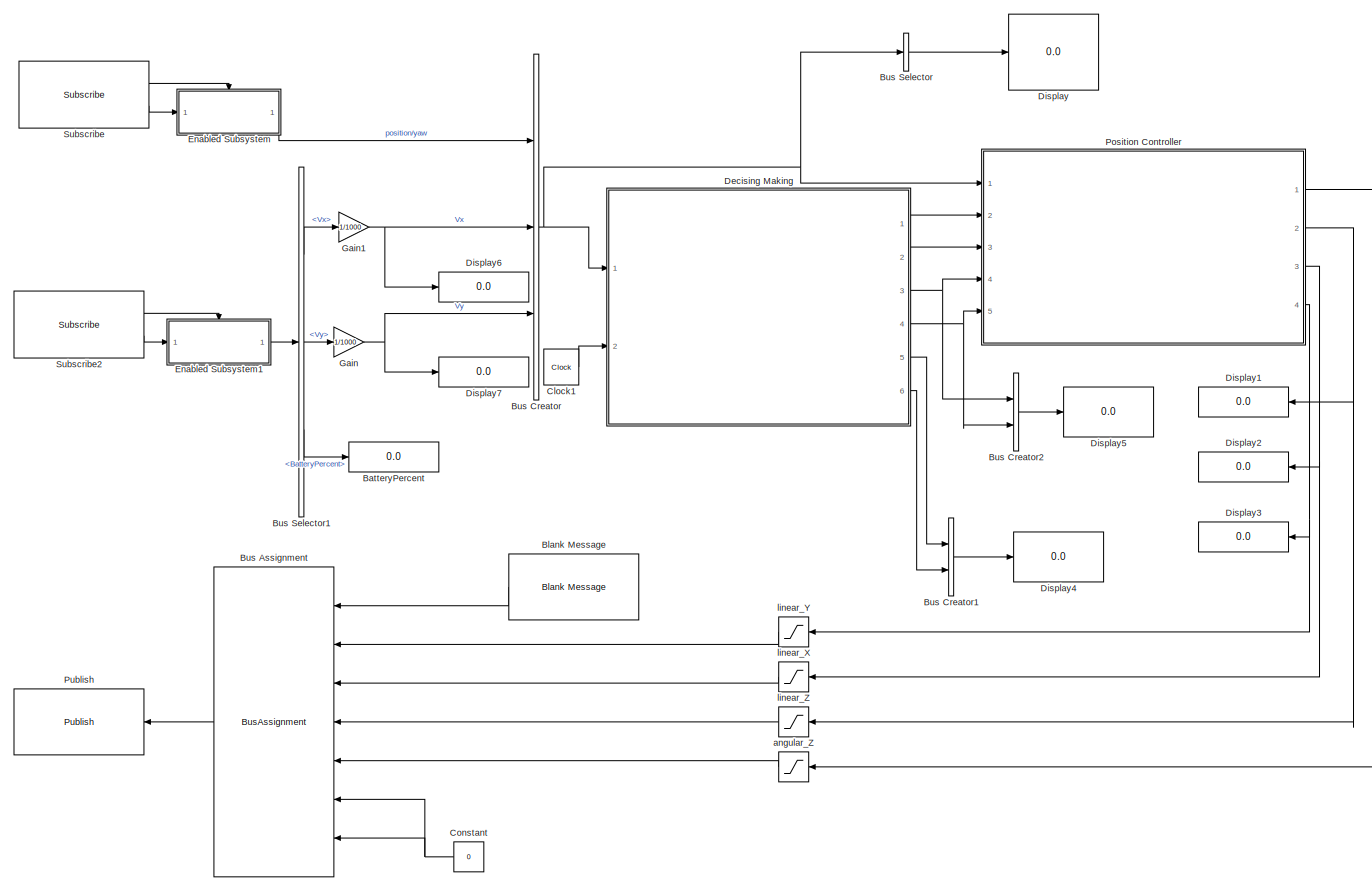
[diagram: root canvas - part 1/1, most of the canvas]
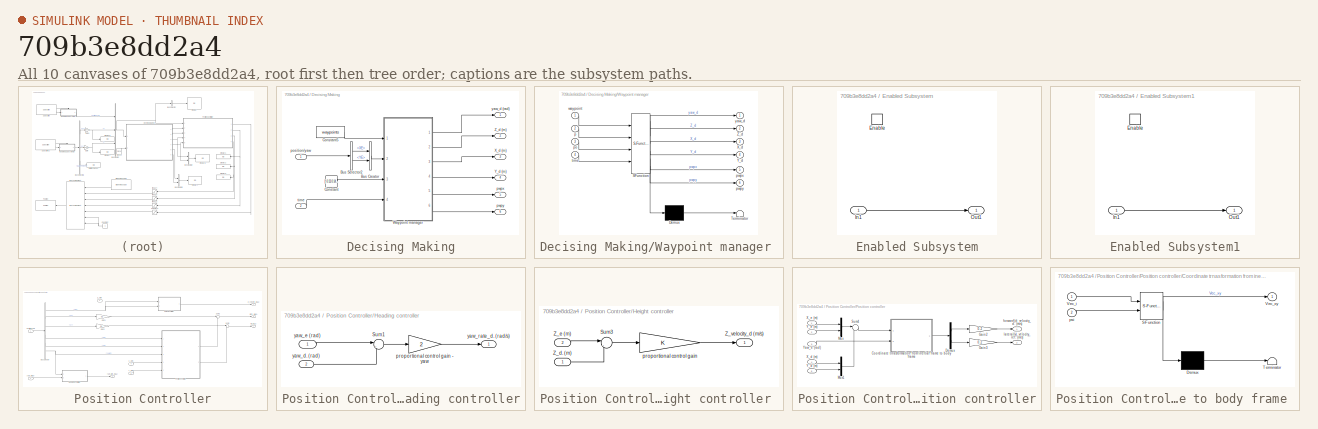
[diagram: thumbnail index - all 10 canvases of the model, root first then tree order]
MODEL slx_709b3e8dd2a4
KIND model
CONFIG AbsTol = auto
CONFIG FixedStep = auto
CONFIG MaxStep = auto
CONFIG MinStep = auto
CONFIG RelTol = 1e-3
CONFIG SampleTimeConstraint = Unconstrained
CONFIG Solver = VariableStepAuto
CONFIG SolverMode = Auto
CONFIG SolverName = VariableStepAuto
CONFIG StartTime = 0.0
CONFIG StopTime = inf
BLOCK [Display] BatteryPercent
  Decimation = 1
  Ports = [1]
BLOCK [Reference] Blank Message  REF=robotlib/Blank Message
  Ports = [0, 1]
  SourceBlock = robotlib/Blank Message
  SourceLibraryInfo = This block requires Robotics System Toolbox
  SourceType = ROS Blank Message
BLOCK [BusAssignment] Bus Assignment
  AssignedSignals = Linear.Y,Linear.X,Angular.Z,Linear.Z,Angular.X,Angular.Y
  Ports = [7, 1]
BLOCK [BusCreator] Bus Creator
  DisplayOption = bar
  InheritFromInputs = on
  Inputs = 3
  Ports = [3, 1]
BLOCK [BusCreator] Bus Creator1
  DisplayOption = bar
  InheritFromInputs = on
  Inputs = 2
  Ports = [2, 1]
BLOCK [BusCreator] Bus Creator2
  DisplayOption = bar
  InheritFromInputs = on
  Inputs = 2
  Ports = [2, 1]
BLOCK [BusSelector] Bus Selector
  OutputAsBus = on
  OutputSignals = position/yaw.XE,position/yaw.YE,position/yaw.YawE
  Ports = [1, 1]
BLOCK [BusSelector] Bus Selector1
  OutputSignals = Vx,Vy,BatteryPercent
  Ports = [1, 3]
BLOCK [Clock] Clock1
  DisplayTime = on
BLOCK [Constant] Constant
  Value = 0
BLOCK [SubSystem] Decising Making
  Ports = [2, 6]
  RequestExecContextInheritance = off
  Variant = off
BLOCK [BusCreator] Decising Making/Bus Creator
  DisplayOption = bar
  InheritFromInputs = on
  Inputs = 2
  Ports = [2, 1]
BLOCK [BusSelector] Decising Making/Bus Selector2
  OutputSignals = position/yaw.XE,position/yaw.YE
  Ports = [1, 2]
BLOCK [Constant] Decising Making/Constant
  Value = [-0.13,0.145,0.3]'
BLOCK [Constant] Decising Making/Constant5
  Value = waypoints
  VectorParams1D = off
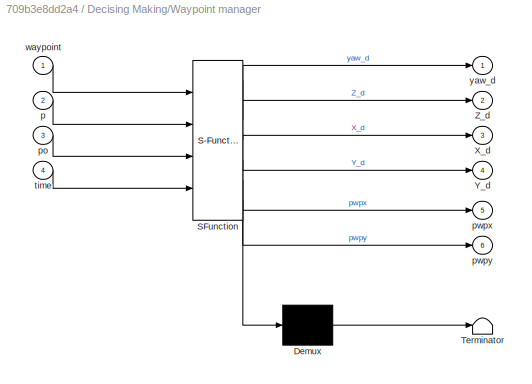
BLOCK [SubSystem] Decising Making/Waypoint manager 
  ErrorFcn = Stateflow.Translate.translate
  PermitHierarchicalResolution = ExplicitOnly
  Ports = [4, 6]
  RequestExecContextInheritance = off
  SFBlockType = MATLAB Function
  TreatAsAtomicUnit = on
  Variant = off
BLOCK [Demux] Decising Making/Waypoint manager / Demux 
  Outputs = 1
  Ports = [1, 1]
BLOCK [S-Function] Decising Making/Waypoint manager / SFunction 
  EnableBusSupport = on
  FunctionName = sf_sfun
  PortCounts = [4 7]
  Ports = [4, 7]
  SFunctionDeploymentMode = off
  Tag = Stateflow S-Function Avoiding_Obstacle 9
BLOCK [Terminator] Decising Making/Waypoint manager / Terminator 
BLOCK [Outport] Decising Making/Waypoint manager /X_d
  IconDisplay = Port number
  Port = 3
BLOCK [Outport] Decising Making/Waypoint manager /Y_d
  IconDisplay = Port number
  Port = 4
BLOCK [Outport] Decising Making/Waypoint manager /Z_d
  IconDisplay = Port number
  Port = 2
BLOCK [Inport] Decising Making/Waypoint manager /p
  IconDisplay = Port number
  Port = 2
BLOCK [Inport] Decising Making/Waypoint manager /po
  IconDisplay = Port number
  Port = 3
BLOCK [Outport] Decising Making/Waypoint manager /pwpx
  IconDisplay = Port number
  Port = 5
BLOCK [Outport] Decising Making/Waypoint manager /pwpy
  IconDisplay = Port number
  Port = 6
BLOCK [Inport] Decising Making/Waypoint manager /time
  IconDisplay = Port number
  Port = 4
BLOCK [Inport] Decising Making/Waypoint manager /waypoint
  IconDisplay = Port number
BLOCK [Outport] Decising Making/Waypoint manager /yaw_d
  IconDisplay = Port number
BLOCK [Outport] Decising Making/X_d (m)
  IconDisplay = Port number
  Port = 3
BLOCK [Outport] Decising Making/Y_d (m)
  IconDisplay = Port number
  Port = 4
BLOCK [Outport] Decising Making/Z_d (m)
  IconDisplay = Port number
  Port = 2
BLOCK [Inport] Decising Making/position//yaw
  IconDisplay = Port number
BLOCK [Outport] Decising Making/pwpx
  IconDisplay = Port number
  Port = 5
BLOCK [Outport] Decising Making/pwpy
  IconDisplay = Port number
  Port = 6
BLOCK [Inport] Decising Making/time
  IconDisplay = Port number
  Port = 2
BLOCK [Outport] Decising Making/yaw_d (rad)
  IconDisplay = Port number
BLOCK [Display] Display
  Decimation = 1
  Ports = [1]
BLOCK [Display] Display1
  Decimation = 1
  Ports = [1]
BLOCK [Display] Display2
  Decimation = 1
  Ports = [1]
BLOCK [Display] Display3
  Decimation = 1
  Ports = [1]
BLOCK [Display] Display4
  Decimation = 1
  Ports = [1]
BLOCK [Display] Display5
  Decimation = 1
  Ports = [1]
BLOCK [Display] Display6
  Decimation = 1
  Ports = [1]
BLOCK [Display] Display7
  Decimation = 1
  Ports = [1]
BLOCK [SubSystem] Enabled Subsystem
  Ports = [1, 1, 1]
  RequestExecContextInheritance = off
  TreatAsAtomicUnit = on
  Variant = off
BLOCK [EnablePort] Enabled Subsystem/Enable
  Ports = []
BLOCK [Inport] Enabled Subsystem/In1
  IconDisplay = Port number
BLOCK [Outport] Enabled Subsystem/Out1
  IconDisplay = Port number
BLOCK [SubSystem] Enabled Subsystem1
  Ports = [1, 1, 1]
  RequestExecContextInheritance = off
  TreatAsAtomicUnit = on
  Variant = off
BLOCK [EnablePort] Enabled Subsystem1/Enable
  Ports = []
BLOCK [Inport] Enabled Subsystem1/In1
  IconDisplay = Port number
BLOCK [Outport] Enabled Subsystem1/Out1
  IconDisplay = Port number
BLOCK [Gain] Gain
  Gain = 1/1000
  OutDataTypeStr = Inherit: Inherit via internal rule
  ParamDataTypeStr = Inherit: Inherit via internal rule
  SaturateOnIntegerOverflow = off
BLOCK [Gain] Gain1
  Gain = 1/1000
  OutDataTypeStr = Inherit: Inherit via internal rule
  ParamDataTypeStr = Inherit: Inherit via internal rule
  SaturateOnIntegerOverflow = off
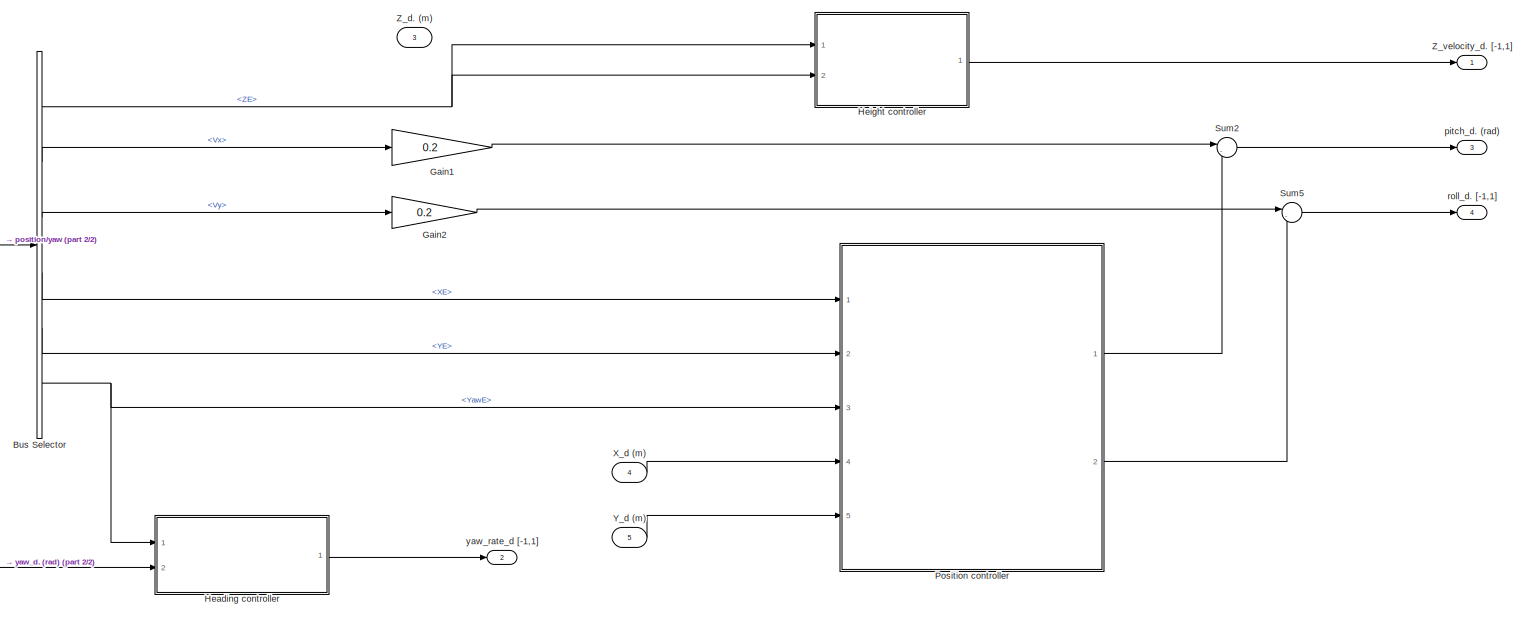
[diagram: Position Controller - part 1/2, most of the canvas]
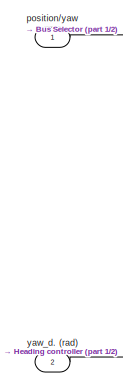
[diagram: Position Controller - part 2/2, middle left region]
BLOCK [SubSystem] Position Controller
  AncestorBlock = ARBlocks/Baseline Controller
  Ports = [5, 4]
  RequestExecContextInheritance = off
  Variant = off
BLOCK [Inport] Position Controller/ position//yaw 
  IconDisplay = Port number
BLOCK [BusSelector] Position Controller/Bus Selector
  OutputSignals = position/yaw.ZE,Vx,Vy,position/yaw.XE,position/yaw.YE,position/yaw.YawE
  Ports = [1, 6]
BLOCK [Gain] Position Controller/Gain1
  Gain = 0.2
  OutDataTypeStr = Inherit: Inherit via internal rule
  ParamDataTypeStr = Inherit: Inherit via internal rule
  SaturateOnIntegerOverflow = off
BLOCK [Gain] Position Controller/Gain2
  Gain = 0.2
  OutDataTypeStr = Inherit: Inherit via internal rule
  ParamDataTypeStr = Inherit: Inherit via internal rule
  SaturateOnIntegerOverflow = off
BLOCK [SubSystem] Position Controller/Heading controller
  Ports = [2, 1]
  RequestExecContextInheritance = off
  Variant = off
BLOCK [Sum] Position Controller/Heading controller/Sum1
  IconShape = round
  InputSameDT = off
  Inputs = |-+
  OutDataTypeStr = Inherit: Inherit via internal rule
  Ports = [2, 1]
  SaturateOnIntegerOverflow = off
BLOCK [Gain] Position Controller/Heading controller/proportional control gain - yaw
  Gain = 2
  OutDataTypeStr = Inherit: Inherit via internal rule
  ParamDataTypeStr = Inherit: Inherit via internal rule
  SaturateOnIntegerOverflow = off
BLOCK [Inport] Position Controller/Heading controller/yaw_d. (rad)
  IconDisplay = Port number
  Port = 2
BLOCK [Inport] Position Controller/Heading controller/yaw_e (rad)
  IconDisplay = Port number
BLOCK [Outport] Position Controller/Heading controller/yaw_rate_d. (rad//s)
  IconDisplay = Port number
BLOCK [SubSystem] Position Controller/Height controller 
  Ports = [2, 1]
  RequestExecContextInheritance = off
  Variant = off
BLOCK [Sum] Position Controller/Height controller /Sum3
  IconShape = round
  InputSameDT = off
  Inputs = |-+
  OutDataTypeStr = Inherit: Inherit via internal rule
  Ports = [2, 1]
  SaturateOnIntegerOverflow = off
BLOCK [Inport] Position Controller/Height controller /Z_d. (m)
  IconDisplay = Port number
BLOCK [Inport] Position Controller/Height controller /Z_e (m)
  IconDisplay = Port number
  Port = 2
BLOCK [Outport] Position Controller/Height controller /Z_velocity_d (m//s)
  IconDisplay = Port number
BLOCK [Gain] Position Controller/Height controller /proportional control gain
  OutDataTypeStr = Inherit: Inherit via internal rule
  ParamDataTypeStr = Inherit: Inherit via internal rule
  SaturateOnIntegerOverflow = off
BLOCK [SubSystem] Position Controller/Position controller
  Ports = [5, 2]
  RequestExecContextInheritance = off
  Variant = off
BLOCK [SubSystem] Position Controller/Position controller/Coordinate trnasformation from inertial frame to body frame 
  ErrorFcn = Stateflow.Translate.translate
  PermitHierarchicalResolution = ExplicitOnly
  Ports = [2, 1]
  RequestExecContextInheritance = off
  SFBlockType = MATLAB Function
  TreatAsAtomicUnit = on
  Variant = off
BLOCK [Demux] Position Controller/Position controller/Coordinate trnasformation from inertial frame to body frame / Demux 
  Outputs = 1
  Ports = [1, 1]
BLOCK [S-Function] Position Controller/Position controller/Coordinate trnasformation from inertial frame to body frame / SFunction 
  EnableBusSupport = on
  FunctionName = sf_sfun
  PortCounts = [2 2]
  Ports = [2, 2]
  SFunctionDeploymentMode = off
  Tag = Stateflow S-Function Avoiding_Obstacle 7
BLOCK [Terminator] Position Controller/Position controller/Coordinate trnasformation from inertial frame to body frame / Terminator 
BLOCK [Inport] Position Controller/Position controller/Coordinate trnasformation from inertial frame to body frame /Vec_i
  IconDisplay = Port number
BLOCK [Outport] Position Controller/Position controller/Coordinate trnasformation from inertial frame to body frame /Vec_xy
  IconDisplay = Port number
BLOCK [Inport] Position Controller/Position controller/Coordinate trnasformation from inertial frame to body frame /psi
  IconDisplay = Port number
  Port = 2
BLOCK [Demux] Position Controller/Position controller/Demux
  DisplayOption = bar
  Outputs = 2
  Ports = [1, 2]
BLOCK [Gain] Position Controller/Position controller/Gain2
  Gain = 0.2
  OutDataTypeStr = Inherit: Inherit via internal rule
  ParamDataTypeStr = Inherit: Inherit via internal rule
  SaturateOnIntegerOverflow = off
BLOCK [Gain] Position Controller/Position controller/Gain3
  Gain = 0.2
  OutDataTypeStr = Inherit: Inherit via internal rule
  ParamDataTypeStr = Inherit: Inherit via internal rule
  SaturateOnIntegerOverflow = off
BLOCK [Mux] Position Controller/Position controller/Mux
  DisplayOption = bar
  Inputs = 2
  Ports = [2, 1]
BLOCK [Mux] Position Controller/Position controller/Mux1
  DisplayOption = bar
  Inputs = 2
  Ports = [2, 1]
BLOCK [Sum] Position Controller/Position controller/Sum4
  IconShape = round
  InputSameDT = off
  Inputs = |-+
  OutDataTypeStr = Inherit: Inherit via internal rule
  Ports = [2, 1]
  SaturateOnIntegerOverflow = off
BLOCK [Inport] Position Controller/Position controller/X_d (m)
  IconDisplay = Port number
  Port = 4
BLOCK [Inport] Position Controller/Position controller/X_e (m)
  IconDisplay = Port number
BLOCK [Inport] Position Controller/Position controller/Y_d (m)
  IconDisplay = Port number
  Port = 5
BLOCK [Inport] Position Controller/Position controller/Y_e (m)
  IconDisplay = Port number
  Port = 2
BLOCK [Inport] Position Controller/Position controller/Yaw_e (rad)
  IconDisplay = Port number
  Port = 3
BLOCK [Outport] Position Controller/Position controller/forward(x)_velocity_d. (m//s)
  IconDisplay = Port number
BLOCK [Outport] Position Controller/Position controller/lateral(y)_velocity_ref. (m//s)
  IconDisplay = Port number
  Port = 2
BLOCK [Sum] Position Controller/Sum2
  IconShape = round
  InputSameDT = off
  Inputs = |-+
  OutDataTypeStr = Inherit: Inherit via internal rule
  Ports = [2, 1]
  SaturateOnIntegerOverflow = off
BLOCK [Sum] Position Controller/Sum5
  IconShape = round
  InputSameDT = off
  Inputs = |-+
  OutDataTypeStr = Inherit: Inherit via internal rule
  Ports = [2, 1]
  SaturateOnIntegerOverflow = off
BLOCK [Inport] Position Controller/X_d (m)
  IconDisplay = Port number
  Port = 4
BLOCK [Inport] Position Controller/Y_d (m)
  IconDisplay = Port number
  Port = 5
BLOCK [Inport] Position Controller/Z_d. (m)
  IconDisplay = Port number
  Port = 3
BLOCK [Outport] Position Controller/Z_velocity_d. [-1,1]
  IconDisplay = Port number
BLOCK [Outport] Position Controller/pitch_d. (rad)
  IconDisplay = Port number
  Port = 3
BLOCK [Outport] Position Controller/roll_d. [-1,1]
  IconDisplay = Port number
  Port = 4
BLOCK [Inport] Position Controller/yaw_d. (rad)
  IconDisplay = Port number
  Port = 2
BLOCK [Outport] Position Controller/yaw_rate_d [-1,1]
  IconDisplay = Port number
  Port = 2
BLOCK [Reference] Publish  REF=robotlib/Publish
  Ports = [1]
  SourceBlock = robotlib/Publish
  SourceLibraryInfo = This block requires Robotics System Toolbox
  SourceType = ROS Publish
BLOCK [Reference] Subscribe  REF=robotlib/Subscribe
  Ports = [0, 2]
  SourceBlock = robotlib/Subscribe
  SourceLibraryInfo = This block requires Robotics System Toolbox
  SourceType = ROS Subscribe
BLOCK [Reference] Subscribe2  REF=robotlib/Subscribe
  Ports = [0, 2]
  SourceBlock = robotlib/Subscribe
  SourceLibraryInfo = This block requires Robotics System Toolbox
  SourceType = ROS Subscribe
BLOCK [Saturate] angular_Z
  InputPortMap = u0
  LowerLimit = -0.1
  Ports = [1, 1]
  UpperLimit = 0.1
BLOCK [Saturate] linear_X
  InputPortMap = u0
  LowerLimit = -0.1
  Ports = [1, 1]
  UpperLimit = 0.1
BLOCK [Saturate] linear_Y
  InputPortMap = u0
  LowerLimit = -0.1
  Ports = [1, 1]
  UpperLimit = 0.1
BLOCK [Saturate] linear_Z
  InputPortMap = u0
  LowerLimit = -0.1
  Ports = [1, 1]
  UpperLimit = 0.1
LINE Blank Message:1 -> Bus Assignment:1
LINE Bus Assignment:1 -> Publish:1
LINE Bus Creator1:1 -> Display4:1
LINE Bus Creator2:1 -> Display5:1
NET Bus Creator:1 -> Bus Selector:1, Decising Making:1, Position Controller:1
LINE Bus Selector1:1 -> Gain1:1
LINE Bus Selector1:2 -> Gain:1
LINE Bus Selector1:3 -> BatteryPercent:1
LINE Bus Selector:1 -> Display:1
LINE Clock1:1 -> Decising Making:2
NET Constant:1 -> Bus Assignment:6, Bus Assignment:7
LINE Decising Making/Bus Creator:1 -> Decising Making/Waypoint manager :2
LINE Decising Making/Bus Selector2:1 -> Decising Making/Bus Creator:1
LINE Decising Making/Bus Selector2:2 -> Decising Making/Bus Creator:2
LINE Decising Making/Constant5:1 -> Decising Making/Waypoint manager :1
LINE Decising Making/Constant:1 -> Decising Making/Waypoint manager :3
LINE Decising Making/Waypoint manager :1 -> Decising Making/yaw_d (rad):1
LINE Decising Making/Waypoint manager :2 -> Decising Making/Z_d (m):1
LINE Decising Making/Waypoint manager :3 -> Decising Making/X_d (m):1
LINE Decising Making/Waypoint manager :4 -> Decising Making/Y_d (m):1
LINE Decising Making/Waypoint manager :5 -> Decising Making/pwpx:1
LINE Decising Making/Waypoint manager :6 -> Decising Making/pwpy:1
LINE Decising Making/position//yaw:1 -> Decising Making/Bus Selector2:1
LINE Decising Making/time:1 -> Decising Making/Waypoint manager :4
LINE Decising Making:1 -> Position Controller:2
LINE Decising Making:2 -> Position Controller:3
NET Decising Making:3 -> Bus Creator2:1, Position Controller:4
NET Decising Making:4 -> Bus Creator2:2, Position Controller:5
LINE Decising Making:5 -> Bus Creator1:1
LINE Decising Making:6 -> Bus Creator1:2
LINE Enabled Subsystem/In1:1 -> Enabled Subsystem/Out1:1
LINE Enabled Subsystem1/In1:1 -> Enabled Subsystem1/Out1:1
LINE Enabled Subsystem1:1 -> Bus Selector1:1
LINE Enabled Subsystem:1 -> Bus Creator:1
NET Gain1:1 -> Bus Creator:2, Display6:1
NET Gain:1 -> Bus Creator:3, Display7:1
LINE Position Controller:1 -> angular_Z:1
NET Position Controller:2 -> Display1:1, linear_Z:1
NET Position Controller:3 -> Display2:1, linear_X:1
NET Position Controller:4 -> Display3:1, linear_Y:1
LINE Subscribe2:1 -> Enabled Subsystem1:enable
LINE Subscribe2:2 -> Enabled Subsystem1:1
LINE Subscribe:1 -> Enabled Subsystem:enable
LINE Subscribe:2 -> Enabled Subsystem:1
LINE angular_Z:1 -> Bus Assignment:5
LINE linear_X:1 -> Bus Assignment:3
LINE linear_Y:1 -> Bus Assignment:2
LINE linear_Z:1 -> Bus Assignment:4
note: NET lines group one-source signal fan-out (src -> all destinations, sorted); 1:1 wires keep LINE
CHART Position Controller/Position controller/Coordinate trnasformation 
from inertial frame to body frame  states=1 transitions=1
  STATE_LABEL 'eML_blk_kernel()'
  STATE_LABEL 'SCRIPT:\nfunction Vec_xy  = fcn(Vec_i , psi)\n%#codegen\nT = [cos(psi) sin(psi) ; -sin(psi) cos(psi)] ; \nVec_xy = T*Vec_i(1:2,1); \n\n'
CHART Decising Making/Waypoint manager
 states=1 transitions=1
  STATE_LABEL 'eML_blk_kernel()'
  STATE_LABEL "SCRIPT:\nfunction [yaw_d, Z_d,  X_d, Y_d, pwpx,pwpy]       = fcn(waypoint, p, po,time )\n\nnPoints = size(waypoint, 2) ;\npersistent wpointer;\npersistent t0 ;\npersistent pd;\n\nif isempty(wpointer)\n    wpointer = 1;\nend\n\nif isempty(t0)\n    t0 = 0;\nend\n\nif isempty(pd)\n    pd = [0 0]';\nend\n\n\nif ( norm(p - waypoint(1:2, wpointer) )< 0.3 )    \n    if(wpointer ~= nPoints)        \n        if (t0 ==0)\n        ...<+604ch>"
